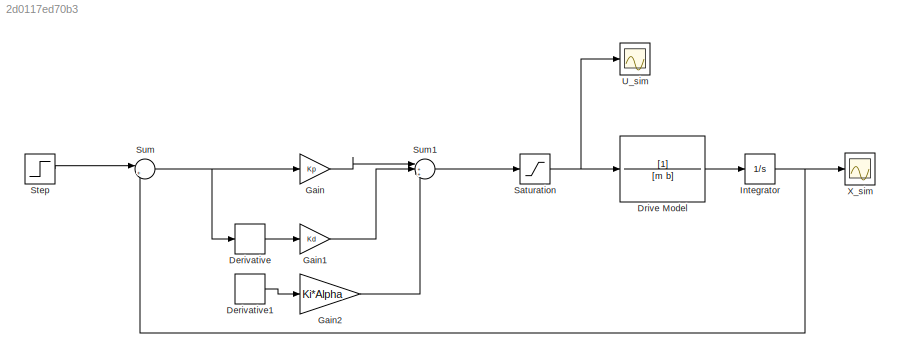
MODEL slx_2d0117ed70b3
KIND model
CONFIG AbsTol = auto
CONFIG EnableMultiTasking = off
CONFIG FixedStep = auto
CONFIG MaxStep = auto
CONFIG MinStep = auto
CONFIG RelTol = 1e-3
CONFIG SampleTimeConstraint = Unconstrained
CONFIG SolverName = VariableStepAuto
CONFIG StartTime = 0.0
CONFIG StopTime = 10
BLOCK [Derivative] Derivative
BLOCK [Derivative] Derivative1
BLOCK [TransferFcn] Drive Model
  Denominator = [m b]
BLOCK [Gain] Gain
  Gain = Kp
BLOCK [Gain] Gain1
  Gain = Kd
BLOCK [Gain] Gain2
  Gain = Ki*Alpha
BLOCK [Integrator] Integrator
BLOCK [Saturate] Saturation
BLOCK [Step] Step
  After = 10
  SampleTime = 0
BLOCK [Sum] Sum
  Inputs = |+-
BLOCK [Sum] Sum1
  Inputs = |+++
BLOCK [Scope] U_sim
  Floating = off
  NumInputPorts = 1
  ScopeSpecificationString = Simulink.scopes.TimeScopeBlockCfg('CurrentConfiguration', extmgr.ConfigurationSet(extmgr.Configuration('Core','General UI',true),extmgr.Configuration('Core','Source UI',true),extmgr.Configuration('Sources','WiredSimulink',true),extmgr.Configuration('Visuals','Time Domain',true,'SerializedDisplays',{struct('MinYLimReal','-0.0625','MaxYLimReal','0.5625','YLabelReal','','MinYLimMag','0.00000','MaxYLi...<+1413ch>
BLOCK [Scope] X_sim
  Floating = off
  NumInputPorts = 1
  ScopeSpecificationString = Simulink.scopes.TimeScopeBlockCfg('CurrentConfiguration', extmgr.ConfigurationSet(extmgr.Configuration('Core','General UI',true),extmgr.Configuration('Core','Source UI',true),extmgr.Configuration('Sources','WiredSimulink',true,'DataLoggingVariableName','ScopeData1'),extmgr.Configuration('Visuals','Time Domain',true,'SerializedDisplays',{struct('MinYLimReal','-0.26693','MaxYLimReal','2.40237','YLab...<+1458ch>
LINE Derivative1:1 -> Gain2:1
LINE Derivative:1 -> Gain1:1
LINE Drive Model:1 -> Integrator:1
LINE Gain1:1 -> Sum1:2
LINE Gain2:1 -> Sum1:3
LINE Gain:1 -> Sum1:1
NET Integrator:1 -> Sum:2, X_sim:1
NET Saturation:1 -> Drive Model:1, U_sim:1
LINE Step:1 -> Sum:1
LINE Sum1:1 -> Saturation:1
NET Sum:1 -> Derivative:1, Gain:1
note: NET lines group one-source signal fan-out (src -> all destinations, sorted); 1:1 wires keep LINE
